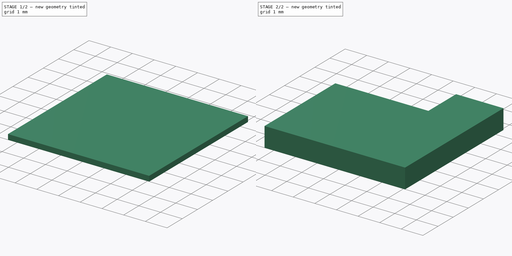
[diagram: build sequence overview — one tinted view per stage of 2, left to right]
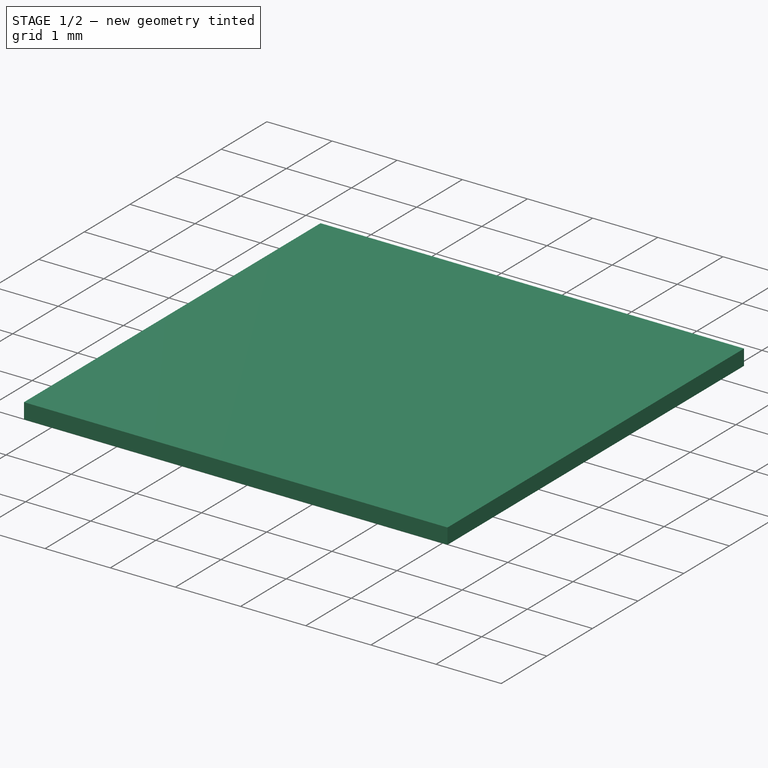
[diagram: stage 1 of 2 — iso view after this stage's code; geometry added in this stage tinted green]
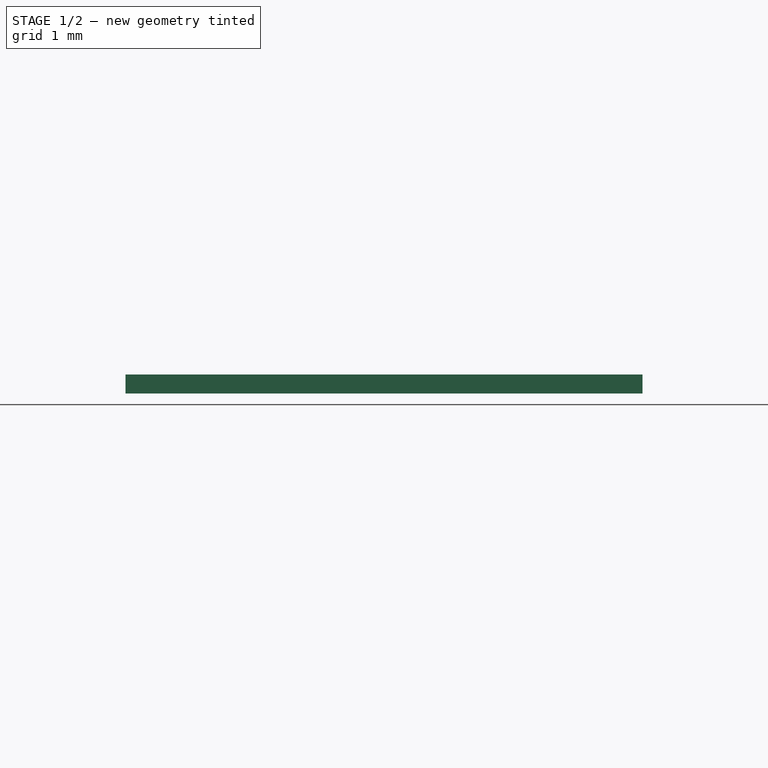
[diagram: stage 1 of 2 — front view after this stage's code; geometry added in this stage tinted green]
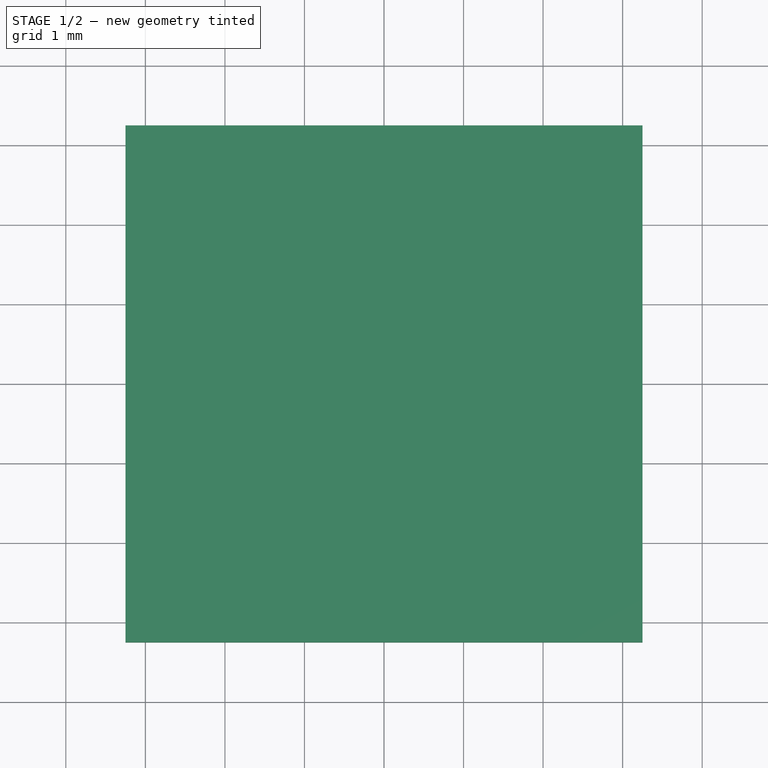
[diagram: stage 1 of 2 — top view after this stage's code; geometry added in this stage tinted green]
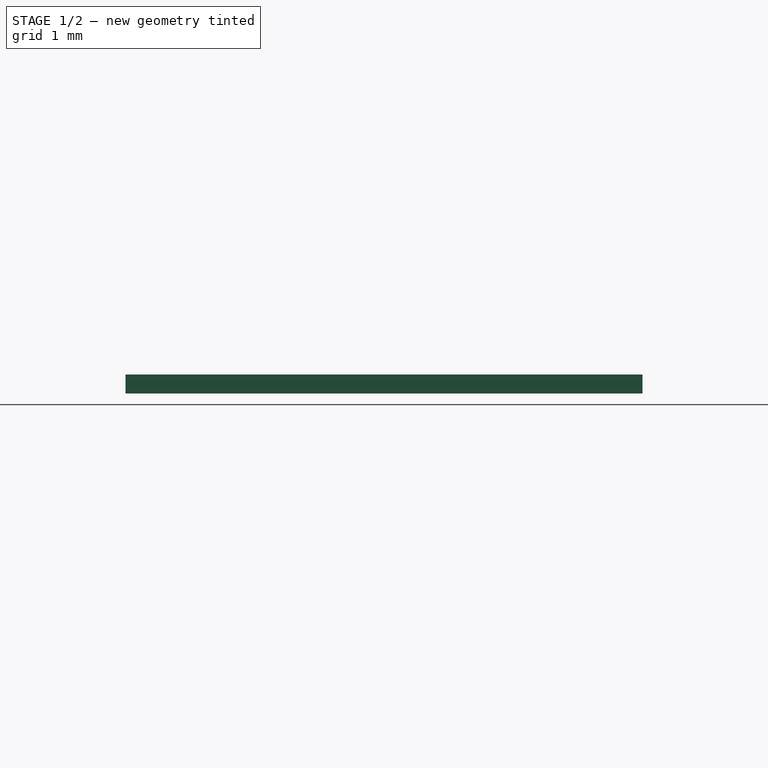
[diagram: stage 1 of 2 — right view after this stage's code; geometry added in this stage tinted green]
FCSTD DOCUMENT  (FreeCAD 1.0R39109 (Git))
Label: Ublox_ANNA_B402_Module_Nrf52833
License: All rights reserved
LicenseURL: https://en.wikipedia.org/wiki/All_rights_reserved
objects: Sketcher::SketchObject×2, PartDesign::Body×1, PartDesign::Pad×1, Part::Extrusion×1, App::Part×1
note: 9 computed .brp shape members not serialized (recipe doc carries the construction recipe); baked Part::Feature solids carry a one-line shape summary decoded from their .brp

FEATURE [PartDesign::Body] Body  label="Substrate"
  AllowCompound = false
  Origin = -> Origin
FEATURE [Sketcher::SketchObject] Sketch
  ArcFitTolerance = 1e-06
  AttachmentSupport = -> [XY_Plane]
  FullyConstrained = true
  MakeInternals = false
  MapMode = 5
  sketch-geometry (5):
    g0: LineSegment StartX=-3.25 StartY=-3.25 StartZ=0 EndX=3.25 EndY=-3.25 EndZ=0
    g1: LineSegment StartX=3.25 StartY=-3.25 StartZ=0 EndX=3.25 EndY=3.25 EndZ=0
    g2: LineSegment StartX=3.25 StartY=3.25 StartZ=0 EndX=-3.25 EndY=3.25 EndZ=0
    g3: LineSegment StartX=-3.25 StartY=3.25 StartZ=0 EndX=-3.25 EndY=-3.25 EndZ=0
    g4: GeomPoint [constr] X=0 Y=0 Z=0
  constraints (12):
    c: Coincident(g0,g1)
    c: Coincident(g1,g2)
    c: Coincident(g2,g3)
    c: Coincident(g3,g0)
    c: Horizontal(g0)
    c: Horizontal(g2)
    c: Vertical(g1)
    c: Vertical(g3)
    c: Symmetric(g2,g0,g4)
    c: Distance(g1,g3) = 6.5
    c: Distance(g0,g2) = 6.5
    c: Coincident(g4,g-1)
FEATURE [PartDesign::Pad] Pad
  Direction = (0,0,1)
  Length = 0.24
  Length2 = 10
  Profile = -> Sketch
  ReferenceAxis = -> Sketch [N_Axis]
  Refine = true
  Suppressed = false
  Type = 0
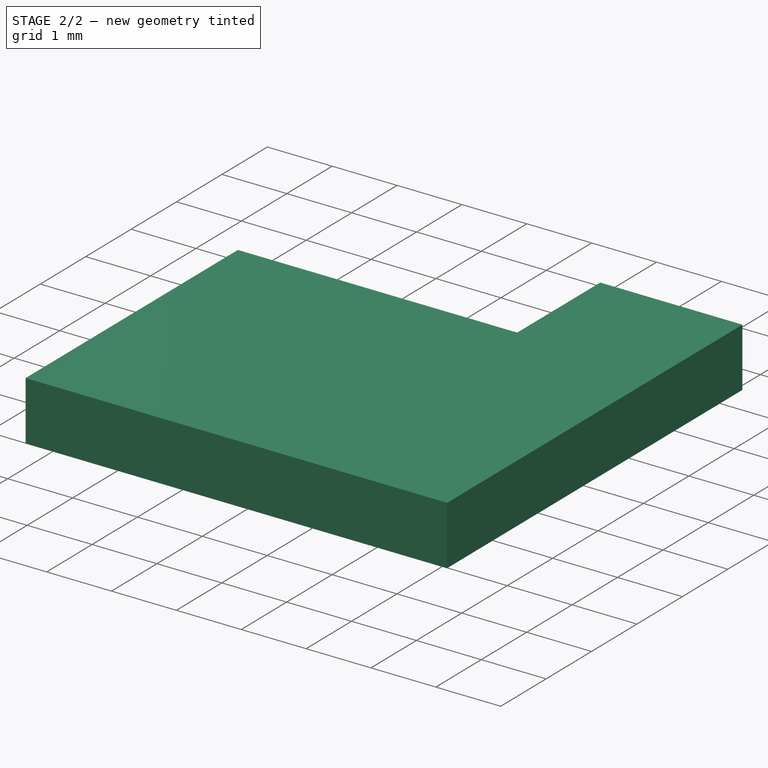
[diagram: stage 2 of 2 — iso view after this stage's code; geometry added in this stage tinted green]
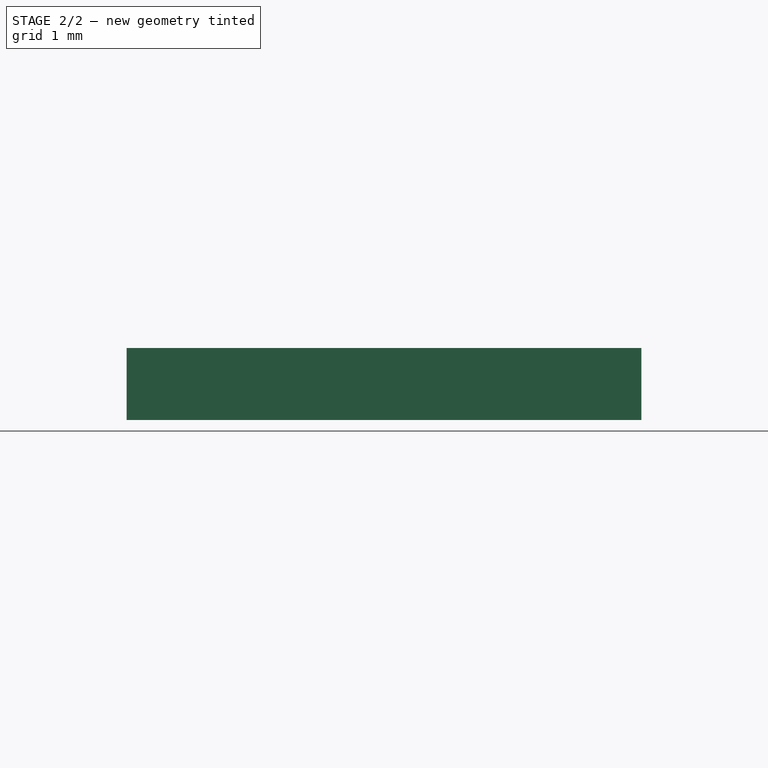
[diagram: stage 2 of 2 — front view after this stage's code; geometry added in this stage tinted green]
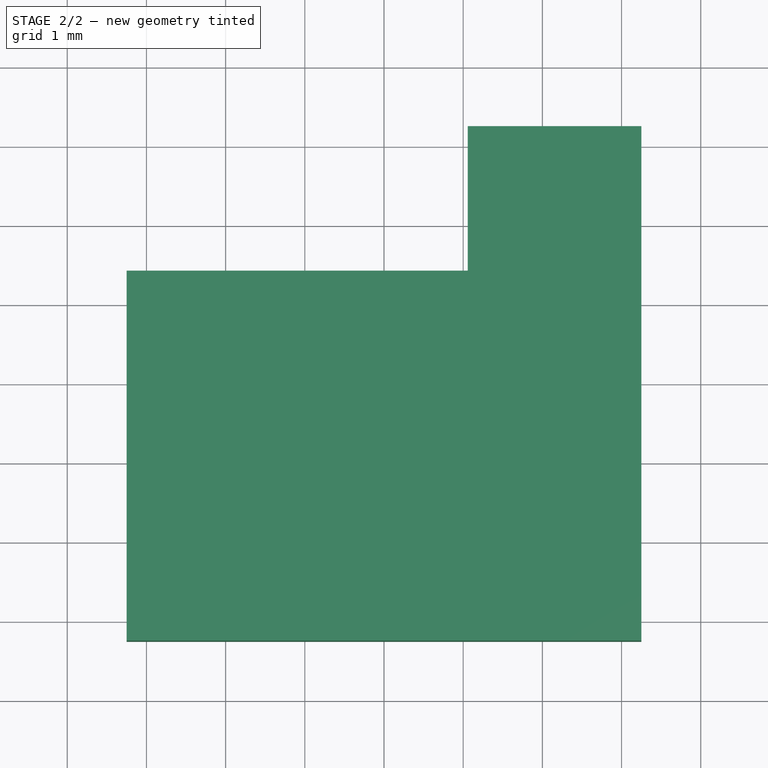
[diagram: stage 2 of 2 — top view after this stage's code; geometry added in this stage tinted green]
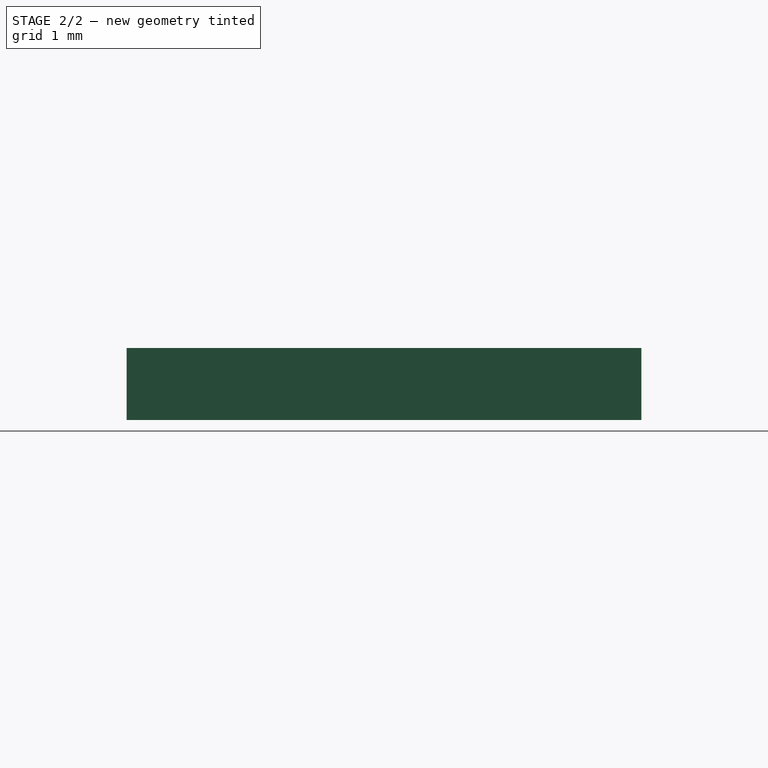
[diagram: stage 2 of 2 — right view after this stage's code; geometry added in this stage tinted green]
FEATURE [Sketcher::SketchObject] Sketch001
  ArcFitTolerance = 1e-06
  AttachmentSupport = -> [Pad]
  ExternalGeometry = -> [Pad]
  FullyConstrained = false
  MakeInternals = false
  MapMode = 5
  Placement = pos=(0,0,0.24) rot=(0,0,1;0rad)
  sketch-geometry (6):
    g0: LineSegment StartX=-3.25 StartY=-3.25 StartZ=0 EndX=-3.25 EndY=1.42388 EndZ=0
    g1: LineSegment StartX=-3.25 StartY=1.42388 StartZ=0 EndX=1.05716 EndY=1.42388 EndZ=0
    g2: LineSegment StartX=1.05716 StartY=1.42388 StartZ=0 EndX=1.05716 EndY=3.25 EndZ=0
    g3: LineSegment StartX=1.05716 StartY=3.25 StartZ=0 EndX=3.25 EndY=3.25 EndZ=0
    g4: LineSegment StartX=3.25 StartY=3.25 StartZ=0 EndX=3.25 EndY=-3.25 EndZ=0
    g5: LineSegment StartX=3.25 StartY=-3.25 StartZ=0 EndX=-3.25 EndY=-3.25 EndZ=0
  constraints (13):
    c: Coincident(g-5,g0)
    c: PointOnObject(g0,g-4)
    c: Coincident(g0,g1)
    c: Horizontal(g1)
    c: Coincident(g1,g2)
    c: PointOnObject(g2,g-3)
    c: Vertical(g2)
    c: Coincident(g2,g3)
    c: Coincident(g3,g-6)
    c: Coincident(g3,g4)
    c: Coincident(g4,g-6)
    c: Coincident(g4,g5)
    c: Coincident(g5,g0)
FEATURE [Part::Extrusion] Extrude  label="Can"
  Base = -> Sketch001
  Dir = (0,0,1)
  DirMode = 2
  FaceMakerClass = Part::FaceMakerBullseye
  FaceMakerMode = 3
  LengthFwd = 0.91
  LengthRev = 0
  Solid = true
  Symmetric = false
FEATURE [App::Part] Part  label="Ublox_ANNA_B402_Module_Nrf52833"
  Group = -> [Body,Sketch,Pad,Sketch001,Extrude]
  Origin = -> Origin001
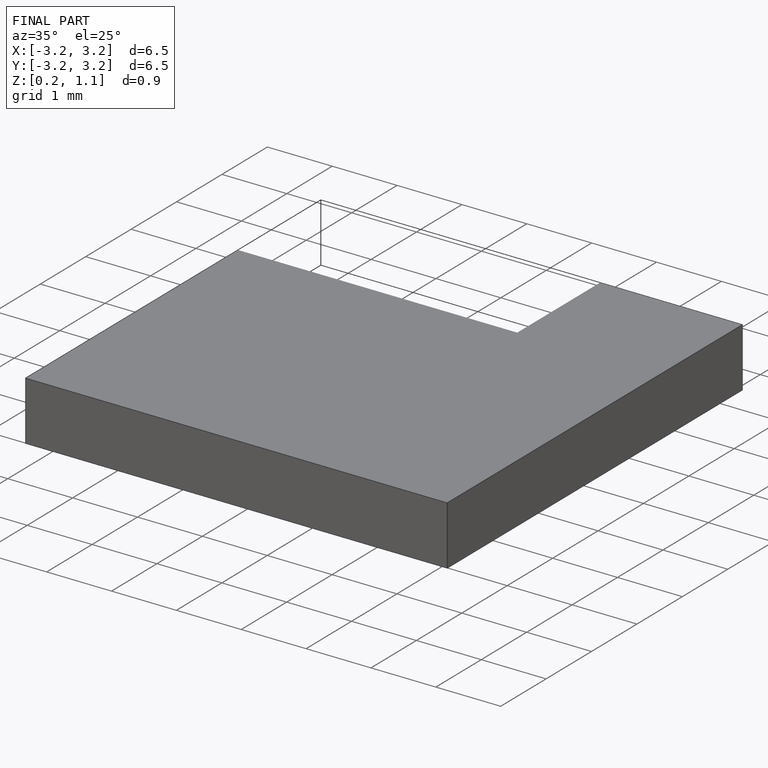
[diagram: finished part — iso view with bounding-box wireframe]
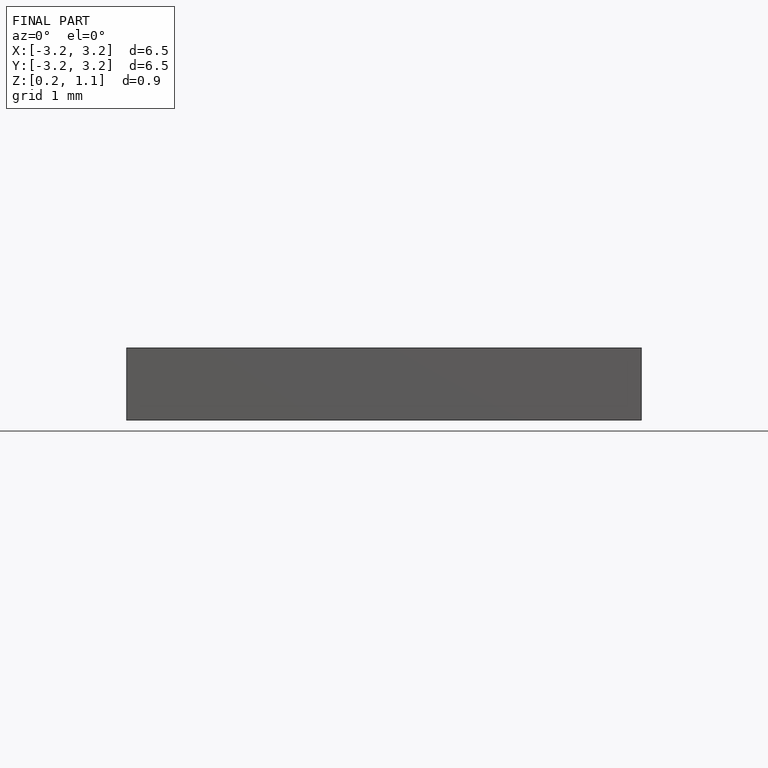
[diagram: finished part — front view with bounding-box wireframe]
